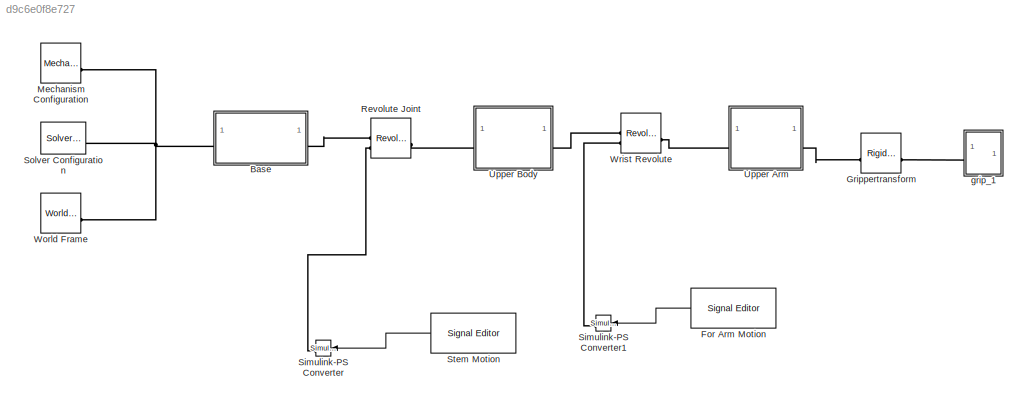
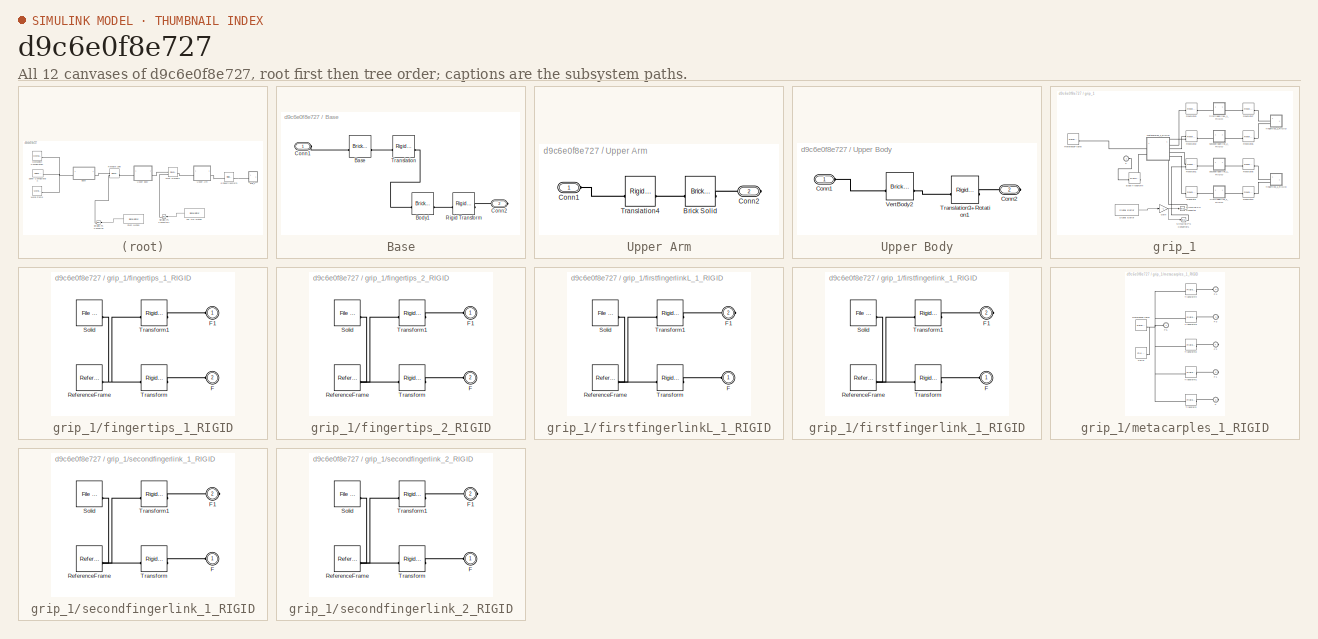
[diagram: thumbnail index - all 12 canvases of the model, root first then tree order]
MODEL slx_d9c6e0f8e727
KIND model
CONFIG AbsTol = auto
CONFIG EnableMultiTasking = off
CONFIG FixedStep = auto
CONFIG MaxStep = auto
CONFIG MinStep = auto
CONFIG RelTol = 1e-3
CONFIG SampleTimeConstraint = Unconstrained
CONFIG SolverName = VariableStepAuto
CONFIG StartTime = 0.0
CONFIG StopTime = 10.0
BLOCK [SubSystem] Base
BLOCK [Reference] Base/Base  REF=sm_lib/Body Elements/Brick Solid
  SourceBlock = sm_lib/Body Elements/Brick Solid
  SourceType = Brick Solid
BLOCK [Reference] Base/Body1  REF=sm_lib/Body Elements/Brick Solid
  SourceBlock = sm_lib/Body Elements/Brick Solid
  SourceType = Brick Solid
BLOCK [PMIOPort] Base/Conn1
  Side = Left
BLOCK [PMIOPort] Base/Conn2
  Port = 2
  Side = Right
BLOCK [Reference] Base/Rigid Transform  REF=sm_lib/Frames and
Transforms/Rigid
Transform
  SourceBlock = sm_lib/Frames and\nTransforms/Rigid\nTransform
  SourceType = Rigid\nTransform
BLOCK [Reference] Base/Translation  REF=sm_lib/Frames and
Transforms/Rigid
Transform
  SourceBlock = sm_lib/Frames and\nTransforms/Rigid\nTransform
  SourceType = Rigid\nTransform
BLOCK [Reference] For Arm Motion  REF=SignalEditorBlockLib/Signal Editor
  LibrarySourceBlock = simulink/Sources/Signal Editor
  SourceBlock = SignalEditorBlockLib/Signal Editor
  SourceType = SignalEditor
  UserDataPersistent = on
BLOCK [Reference] Grippertransform  REF=sm_lib/Frames and
Transforms/Rigid
Transform
  SourceBlock = sm_lib/Frames and\nTransforms/Rigid\nTransform
  SourceType = Rigid\nTransform
BLOCK [Reference] Mechanism Configuration  REF=sm_lib/Utilities/Mechanism
Configuration
  SourceBlock = sm_lib/Utilities/Mechanism\nConfiguration
  SourceType = Mechanism\nConfiguration
BLOCK [Reference] Revolute Joint  REF=sm_lib/Joints/Revolute Joint
  SourceBlock = sm_lib/Joints/Revolute Joint
  SourceType = Revolute Joint
BLOCK [Reference] Simulink-PS Converter  REF=nesl_utility/Simulink-PS
Converter
  SourceBlock = nesl_utility/Simulink-PS\nConverter
  SourceType = Simulink-PS\nConverter
BLOCK [Reference] Simulink-PS Converter1  REF=nesl_utility/Simulink-PS
Converter
  SourceBlock = nesl_utility/Simulink-PS\nConverter
  SourceType = Simulink-PS\nConverter
BLOCK [Reference] Solver Configuration  REF=nesl_utility/Solver
Configuration
  SourceBlock = nesl_utility/Solver\nConfiguration
  SourceType = Solver\nConfiguration
BLOCK [Reference] Stem Motion  REF=SignalEditorBlockLib/Signal Editor
  LibrarySourceBlock = simulink/Sources/Signal Editor
  SourceBlock = SignalEditorBlockLib/Signal Editor
  SourceType = SignalEditor
  UserDataPersistent = on
BLOCK [SubSystem] Upper Arm
BLOCK [Reference] Upper Arm/Brick Solid  REF=sm_lib/Body Elements/Brick Solid
  SourceBlock = sm_lib/Body Elements/Brick Solid
  SourceType = Brick Solid
BLOCK [PMIOPort] Upper Arm/Conn1
  Side = Left
BLOCK [PMIOPort] Upper Arm/Conn2
  Port = 2
  Side = Right
BLOCK [Reference] Upper Arm/Translation4  REF=sm_lib/Frames and
Transforms/Rigid
Transform
  SourceBlock = sm_lib/Frames and\nTransforms/Rigid\nTransform
  SourceType = Rigid\nTransform
BLOCK [SubSystem] Upper Body
BLOCK [PMIOPort] Upper Body/Conn1
  Side = Left
BLOCK [PMIOPort] Upper Body/Conn2
  Port = 2
  Side = Right
BLOCK [Reference] Upper Body/Translation3+Rotation1  REF=sm_lib/Frames and
Transforms/Rigid
Transform
  SourceBlock = sm_lib/Frames and\nTransforms/Rigid\nTransform
  SourceType = Rigid\nTransform
BLOCK [Reference] Upper Body/VertBody2  REF=sm_lib/Body Elements/Brick Solid
  SourceBlock = sm_lib/Body Elements/Brick Solid
  SourceType = Brick Solid
BLOCK [Reference] World Frame  REF=sm_lib/Frames and
Transforms/World Frame
  SourceBlock = sm_lib/Frames and\nTransforms/World Frame
  SourceType = World Frame
BLOCK [Reference] Wrist Revolute  REF=sm_lib/Joints/Revolute Joint
  SourceBlock = sm_lib/Joints/Revolute Joint
  SourceType = Revolute Joint
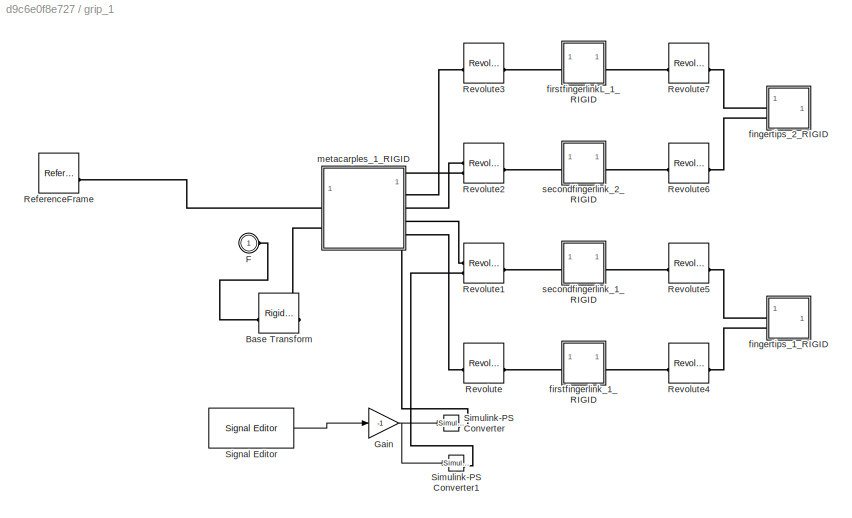
BLOCK [SubSystem] grip_1
BLOCK [Reference] grip_1/Base Transform  REF=sm_lib/Frames and
Transforms/Rigid
Transform
  SourceBlock = sm_lib/Frames and\nTransforms/Rigid\nTransform
  SourceType = Rigid\nTransform
BLOCK [PMIOPort] grip_1/F
  Side = Left
BLOCK [Gain] grip_1/Gain
  Gain = -1
BLOCK [Reference] grip_1/ReferenceFrame  REF=sm_lib/Frames and
Transforms/Reference
Frame
  SourceBlock = sm_lib/Frames and\nTransforms/Reference\nFrame
  SourceType = Reference\nFrame
BLOCK [Reference] grip_1/Revolute  REF=sm_lib/Joints/Revolute Joint
  SourceBlock = sm_lib/Joints/Revolute Joint
  SourceType = Revolute Joint
BLOCK [Reference] grip_1/Revolute1  REF=sm_lib/Joints/Revolute Joint
  SourceBlock = sm_lib/Joints/Revolute Joint
  SourceType = Revolute Joint
BLOCK [Reference] grip_1/Revolute2  REF=sm_lib/Joints/Revolute Joint
  SourceBlock = sm_lib/Joints/Revolute Joint
  SourceType = Revolute Joint
BLOCK [Reference] grip_1/Revolute3  REF=sm_lib/Joints/Revolute Joint
  SourceBlock = sm_lib/Joints/Revolute Joint
  SourceType = Revolute Joint
BLOCK [Reference] grip_1/Revolute4  REF=sm_lib/Joints/Revolute Joint
  SourceBlock = sm_lib/Joints/Revolute Joint
  SourceType = Revolute Joint
BLOCK [Reference] grip_1/Revolute5  REF=sm_lib/Joints/Revolute Joint
  SourceBlock = sm_lib/Joints/Revolute Joint
  SourceType = Revolute Joint
BLOCK [Reference] grip_1/Revolute6  REF=sm_lib/Joints/Revolute Joint
  SourceBlock = sm_lib/Joints/Revolute Joint
  SourceType = Revolute Joint
BLOCK [Reference] grip_1/Revolute7  REF=sm_lib/Joints/Revolute Joint
  SourceBlock = sm_lib/Joints/Revolute Joint
  SourceType = Revolute Joint
BLOCK [Reference] grip_1/Signal Editor  REF=SignalEditorBlockLib/Signal Editor
  LibrarySourceBlock = simulink/Sources/Signal Editor
  SourceBlock = SignalEditorBlockLib/Signal Editor
  SourceType = SignalEditor
  UserDataPersistent = on
BLOCK [Reference] grip_1/Simulink-PS Converter  REF=nesl_utility/Simulink-PS
Converter
  SourceBlock = nesl_utility/Simulink-PS\nConverter
  SourceType = Simulink-PS\nConverter
BLOCK [Reference] grip_1/Simulink-PS Converter1  REF=nesl_utility/Simulink-PS
Converter
  SourceBlock = nesl_utility/Simulink-PS\nConverter
  SourceType = Simulink-PS\nConverter
BLOCK [SubSystem] grip_1/fingertips_1_RIGID
BLOCK [PMIOPort] grip_1/fingertips_1_RIGID/F
  Port = 2
  Side = Left
BLOCK [PMIOPort] grip_1/fingertips_1_RIGID/F1
  Side = Left
BLOCK [Reference] grip_1/fingertips_1_RIGID/ReferenceFrame  REF=sm_lib/Frames and
Transforms/Reference
Frame
  SourceBlock = sm_lib/Frames and\nTransforms/Reference\nFrame
  SourceType = Reference\nFrame
BLOCK [Reference] grip_1/fingertips_1_RIGID/Solid  REF=sm_lib/Body Elements/File Solid
  SourceBlock = sm_lib/Body Elements/File Solid
  SourceType = File Solid
BLOCK [Reference] grip_1/fingertips_1_RIGID/Transform  REF=sm_lib/Frames and
Transforms/Rigid
Transform
  SourceBlock = sm_lib/Frames and\nTransforms/Rigid\nTransform
  SourceType = Rigid\nTransform
BLOCK [Reference] grip_1/fingertips_1_RIGID/Transform1  REF=sm_lib/Frames and
Transforms/Rigid
Transform
  SourceBlock = sm_lib/Frames and\nTransforms/Rigid\nTransform
  SourceType = Rigid\nTransform
BLOCK [SubSystem] grip_1/fingertips_2_RIGID
BLOCK [PMIOPort] grip_1/fingertips_2_RIGID/F
  Port = 2
  Side = Left
BLOCK [PMIOPort] grip_1/fingertips_2_RIGID/F1
  Side = Left
BLOCK [Reference] grip_1/fingertips_2_RIGID/ReferenceFrame  REF=sm_lib/Frames and
Transforms/Reference
Frame
  SourceBlock = sm_lib/Frames and\nTransforms/Reference\nFrame
  SourceType = Reference\nFrame
BLOCK [Reference] grip_1/fingertips_2_RIGID/Solid  REF=sm_lib/Body Elements/File Solid
  SourceBlock = sm_lib/Body Elements/File Solid
  SourceType = File Solid
BLOCK [Reference] grip_1/fingertips_2_RIGID/Transform  REF=sm_lib/Frames and
Transforms/Rigid
Transform
  SourceBlock = sm_lib/Frames and\nTransforms/Rigid\nTransform
  SourceType = Rigid\nTransform
BLOCK [Reference] grip_1/fingertips_2_RIGID/Transform1  REF=sm_lib/Frames and
Transforms/Rigid
Transform
  SourceBlock = sm_lib/Frames and\nTransforms/Rigid\nTransform
  SourceType = Rigid\nTransform
BLOCK [SubSystem] grip_1/firstfingerlinkL_1_RIGID
BLOCK [PMIOPort] grip_1/firstfingerlinkL_1_RIGID/F
  Side = Left
BLOCK [PMIOPort] grip_1/firstfingerlinkL_1_RIGID/F1
  Port = 2
  Side = Right
BLOCK [Reference] grip_1/firstfingerlinkL_1_RIGID/ReferenceFrame  REF=sm_lib/Frames and
Transforms/Reference
Frame
  SourceBlock = sm_lib/Frames and\nTransforms/Reference\nFrame
  SourceType = Reference\nFrame
BLOCK [Reference] grip_1/firstfingerlinkL_1_RIGID/Solid  REF=sm_lib/Body Elements/File Solid
  SourceBlock = sm_lib/Body Elements/File Solid
  SourceType = File Solid
BLOCK [Reference] grip_1/firstfingerlinkL_1_RIGID/Transform  REF=sm_lib/Frames and
Transforms/Rigid
Transform
  SourceBlock = sm_lib/Frames and\nTransforms/Rigid\nTransform
  SourceType = Rigid\nTransform
BLOCK [Reference] grip_1/firstfingerlinkL_1_RIGID/Transform1  REF=sm_lib/Frames and
Transforms/Rigid
Transform
  SourceBlock = sm_lib/Frames and\nTransforms/Rigid\nTransform
  SourceType = Rigid\nTransform
BLOCK [SubSystem] grip_1/firstfingerlink_1_RIGID
BLOCK [PMIOPort] grip_1/firstfingerlink_1_RIGID/F
  Side = Left
BLOCK [PMIOPort] grip_1/firstfingerlink_1_RIGID/F1
  Port = 2
  Side = Right
BLOCK [Reference] grip_1/firstfingerlink_1_RIGID/ReferenceFrame  REF=sm_lib/Frames and
Transforms/Reference
Frame
  SourceBlock = sm_lib/Frames and\nTransforms/Reference\nFrame
  SourceType = Reference\nFrame
BLOCK [Reference] grip_1/firstfingerlink_1_RIGID/Solid  REF=sm_lib/Body Elements/File Solid
  SourceBlock = sm_lib/Body Elements/File Solid
  SourceType = File Solid
BLOCK [Reference] grip_1/firstfingerlink_1_RIGID/Transform  REF=sm_lib/Frames and
Transforms/Rigid
Transform
  SourceBlock = sm_lib/Frames and\nTransforms/Rigid\nTransform
  SourceType = Rigid\nTransform
BLOCK [Reference] grip_1/firstfingerlink_1_RIGID/Transform1  REF=sm_lib/Frames and
Transforms/Rigid
Transform
  SourceBlock = sm_lib/Frames and\nTransforms/Rigid\nTransform
  SourceType = Rigid\nTransform
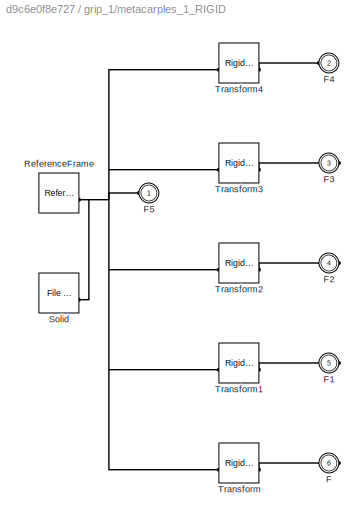
BLOCK [SubSystem] grip_1/metacarples_1_RIGID
BLOCK [PMIOPort] grip_1/metacarples_1_RIGID/F
  Port = 6
  Side = Right
BLOCK [PMIOPort] grip_1/metacarples_1_RIGID/F1
  Port = 5
  Side = Right
BLOCK [PMIOPort] grip_1/metacarples_1_RIGID/F2
  Port = 4
  Side = Right
BLOCK [PMIOPort] grip_1/metacarples_1_RIGID/F3
  Port = 3
  Side = Right
BLOCK [PMIOPort] grip_1/metacarples_1_RIGID/F4
  Port = 2
  Side = Left
BLOCK [PMIOPort] grip_1/metacarples_1_RIGID/F5
  Side = Left
BLOCK [Reference] grip_1/metacarples_1_RIGID/ReferenceFrame  REF=sm_lib/Frames and
Transforms/Reference
Frame
  SourceBlock = sm_lib/Frames and\nTransforms/Reference\nFrame
  SourceType = Reference\nFrame
BLOCK [Reference] grip_1/metacarples_1_RIGID/Solid  REF=sm_lib/Body Elements/File Solid
  SourceBlock = sm_lib/Body Elements/File Solid
  SourceType = File Solid
BLOCK [Reference] grip_1/metacarples_1_RIGID/Transform  REF=sm_lib/Frames and
Transforms/Rigid
Transform
  SourceBlock = sm_lib/Frames and\nTransforms/Rigid\nTransform
  SourceType = Rigid\nTransform
BLOCK [Reference] grip_1/metacarples_1_RIGID/Transform1  REF=sm_lib/Frames and
Transforms/Rigid
Transform
  SourceBlock = sm_lib/Frames and\nTransforms/Rigid\nTransform
  SourceType = Rigid\nTransform
BLOCK [Reference] grip_1/metacarples_1_RIGID/Transform2  REF=sm_lib/Frames and
Transforms/Rigid
Transform
  SourceBlock = sm_lib/Frames and\nTransforms/Rigid\nTransform
  SourceType = Rigid\nTransform
BLOCK [Reference] grip_1/metacarples_1_RIGID/Transform3  REF=sm_lib/Frames and
Transforms/Rigid
Transform
  SourceBlock = sm_lib/Frames and\nTransforms/Rigid\nTransform
  SourceType = Rigid\nTransform
BLOCK [Reference] grip_1/metacarples_1_RIGID/Transform4  REF=sm_lib/Frames and
Transforms/Rigid
Transform
  SourceBlock = sm_lib/Frames and\nTransforms/Rigid\nTransform
  SourceType = Rigid\nTransform
BLOCK [SubSystem] grip_1/secondfingerlink_1_RIGID
BLOCK [PMIOPort] grip_1/secondfingerlink_1_RIGID/F
  Side = Left
BLOCK [PMIOPort] grip_1/secondfingerlink_1_RIGID/F1
  Port = 2
  Side = Right
BLOCK [Reference] grip_1/secondfingerlink_1_RIGID/ReferenceFrame  REF=sm_lib/Frames and
Transforms/Reference
Frame
  SourceBlock = sm_lib/Frames and\nTransforms/Reference\nFrame
  SourceType = Reference\nFrame
BLOCK [Reference] grip_1/secondfingerlink_1_RIGID/Solid  REF=sm_lib/Body Elements/File Solid
  SourceBlock = sm_lib/Body Elements/File Solid
  SourceType = File Solid
BLOCK [Reference] grip_1/secondfingerlink_1_RIGID/Transform  REF=sm_lib/Frames and
Transforms/Rigid
Transform
  SourceBlock = sm_lib/Frames and\nTransforms/Rigid\nTransform
  SourceType = Rigid\nTransform
BLOCK [Reference] grip_1/secondfingerlink_1_RIGID/Transform1  REF=sm_lib/Frames and
Transforms/Rigid
Transform
  SourceBlock = sm_lib/Frames and\nTransforms/Rigid\nTransform
  SourceType = Rigid\nTransform
BLOCK [SubSystem] grip_1/secondfingerlink_2_RIGID
BLOCK [PMIOPort] grip_1/secondfingerlink_2_RIGID/F
  Side = Left
BLOCK [PMIOPort] grip_1/secondfingerlink_2_RIGID/F1
  Port = 2
  Side = Right
BLOCK [Reference] grip_1/secondfingerlink_2_RIGID/ReferenceFrame  REF=sm_lib/Frames and
Transforms/Reference
Frame
  SourceBlock = sm_lib/Frames and\nTransforms/Reference\nFrame
  SourceType = Reference\nFrame
BLOCK [Reference] grip_1/secondfingerlink_2_RIGID/Solid  REF=sm_lib/Body Elements/File Solid
  SourceBlock = sm_lib/Body Elements/File Solid
  SourceType = File Solid
BLOCK [Reference] grip_1/secondfingerlink_2_RIGID/Transform  REF=sm_lib/Frames and
Transforms/Rigid
Transform
  SourceBlock = sm_lib/Frames and\nTransforms/Rigid\nTransform
  SourceType = Rigid\nTransform
BLOCK [Reference] grip_1/secondfingerlink_2_RIGID/Transform1  REF=sm_lib/Frames and
Transforms/Rigid
Transform
  SourceBlock = sm_lib/Frames and\nTransforms/Rigid\nTransform
  SourceType = Rigid\nTransform
LINE For Arm Motion:1 -> Simulink-PS Converter1:1
LINE Stem Motion:1 -> Simulink-PS Converter:1
NET grip_1/Gain:1 -> grip_1/Simulink-PS Converter1:1, grip_1/Simulink-PS Converter:1
LINE grip_1/Signal Editor:1 -> grip_1/Gain:1
PLINE Base/Base:LConn1 -- Base/Conn1:RConn1
PLINE Base/Base:RConn1 -- Base/Translation:LConn1
PLINE Base/Body1:LConn1 -- Base/Translation:RConn1
PLINE Base/Body1:RConn1 -- Base/Rigid Transform:LConn1
PLINE Base/Conn2:RConn1 -- Base/Rigid Transform:RConn1
PNET net1: Base:LConn1 -- Mechanism Configuration:RConn1 -- Solver Configuration:RConn1 -- World Frame:RConn1
PLINE Base:RConn1 -- Revolute Joint:LConn1
PLINE Grippertransform:LConn1 -- Upper Arm:RConn1
PLINE Grippertransform:RConn1 -- grip_1:LConn1
PLINE Revolute Joint:LConn2 -- Simulink-PS Converter:RConn1
PLINE Revolute Joint:RConn1 -- Upper Body:LConn1
PLINE Simulink-PS Converter1:RConn1 -- Wrist Revolute:LConn2
PLINE Upper Arm/Brick Solid:LConn1 -- Upper Arm/Translation4:RConn1
PLINE Upper Arm/Brick Solid:RConn1 -- Upper Arm/Conn2:RConn1
PLINE Upper Arm/Conn1:RConn1 -- Upper Arm/Translation4:LConn1
PLINE Upper Arm:LConn1 -- Wrist Revolute:RConn1
PLINE Upper Body/Conn1:RConn1 -- Upper Body/VertBody2:LConn1
PLINE Upper Body/Conn2:RConn1 -- Upper Body/Translation3+Rotation1:RConn1
PLINE Upper Body/Translation3+Rotation1:LConn1 -- Upper Body/VertBody2:RConn1
PLINE Upper Body:RConn1 -- Wrist Revolute:LConn1
PLINE grip_1/Base Transform:LConn1 -- grip_1/F:RConn1
PLINE grip_1/Base Transform:RConn1 -- grip_1/metacarples_1_RIGID:LConn2
PLINE grip_1/ReferenceFrame:RConn1 -- grip_1/metacarples_1_RIGID:LConn1
PLINE grip_1/Revolute1:LConn1 -- grip_1/metacarples_1_RIGID:RConn3
PLINE grip_1/Revolute1:LConn2 -- grip_1/Simulink-PS Converter1:RConn1
PLINE grip_1/Revolute1:RConn1 -- grip_1/secondfingerlink_1_RIGID:LConn1
PLINE grip_1/Revolute2:LConn1 -- grip_1/metacarples_1_RIGID:RConn2
PLINE grip_1/Revolute2:LConn2 -- grip_1/Simulink-PS Converter:RConn1
PLINE grip_1/Revolute2:RConn1 -- grip_1/secondfingerlink_2_RIGID:LConn1
PLINE grip_1/Revolute3:LConn1 -- grip_1/metacarples_1_RIGID:RConn1
PLINE grip_1/Revolute3:RConn1 -- grip_1/firstfingerlinkL_1_RIGID:LConn1
PLINE grip_1/Revolute4:LConn1 -- grip_1/firstfingerlink_1_RIGID:RConn1
PLINE grip_1/Revolute4:RConn1 -- grip_1/fingertips_1_RIGID:LConn2
PLINE grip_1/Revolute5:LConn1 -- grip_1/secondfingerlink_1_RIGID:RConn1
PLINE grip_1/Revolute5:RConn1 -- grip_1/fingertips_1_RIGID:LConn1
PLINE grip_1/Revolute6:LConn1 -- grip_1/secondfingerlink_2_RIGID:RConn1
PLINE grip_1/Revolute6:RConn1 -- grip_1/fingertips_2_RIGID:LConn2
PLINE grip_1/Revolute7:LConn1 -- grip_1/firstfingerlinkL_1_RIGID:RConn1
PLINE grip_1/Revolute7:RConn1 -- grip_1/fingertips_2_RIGID:LConn1
PLINE grip_1/Revolute:LConn1 -- grip_1/metacarples_1_RIGID:RConn4
PLINE grip_1/Revolute:RConn1 -- grip_1/firstfingerlink_1_RIGID:LConn1
PLINE grip_1/fingertips_1_RIGID/F1:RConn1 -- grip_1/fingertips_1_RIGID/Transform1:RConn1
PLINE grip_1/fingertips_1_RIGID/F:RConn1 -- grip_1/fingertips_1_RIGID/Transform:RConn1
PNET net2: grip_1/fingertips_1_RIGID/ReferenceFrame:RConn1 -- grip_1/fingertips_1_RIGID/Solid:RConn1 -- grip_1/fingertips_1_RIGID/Transform1:LConn1 -- grip_1/fingertips_1_RIGID/Transform:LConn1
PLINE grip_1/fingertips_2_RIGID/F1:RConn1 -- grip_1/fingertips_2_RIGID/Transform1:RConn1
PLINE grip_1/fingertips_2_RIGID/F:RConn1 -- grip_1/fingertips_2_RIGID/Transform:RConn1
PNET net3: grip_1/fingertips_2_RIGID/ReferenceFrame:RConn1 -- grip_1/fingertips_2_RIGID/Solid:RConn1 -- grip_1/fingertips_2_RIGID/Transform1:LConn1 -- grip_1/fingertips_2_RIGID/Transform:LConn1
PLINE grip_1/firstfingerlinkL_1_RIGID/F1:RConn1 -- grip_1/firstfingerlinkL_1_RIGID/Transform1:RConn1
PLINE grip_1/firstfingerlinkL_1_RIGID/F:RConn1 -- grip_1/firstfingerlinkL_1_RIGID/Transform:RConn1
PNET net4: grip_1/firstfingerlinkL_1_RIGID/ReferenceFrame:RConn1 -- grip_1/firstfingerlinkL_1_RIGID/Solid:RConn1 -- grip_1/firstfingerlinkL_1_RIGID/Transform1:LConn1 -- grip_1/firstfingerlinkL_1_RIGID/Transform:LConn1
PLINE grip_1/firstfingerlink_1_RIGID/F1:RConn1 -- grip_1/firstfingerlink_1_RIGID/Transform1:RConn1
PLINE grip_1/firstfingerlink_1_RIGID/F:RConn1 -- grip_1/firstfingerlink_1_RIGID/Transform:RConn1
PNET net5: grip_1/firstfingerlink_1_RIGID/ReferenceFrame:RConn1 -- grip_1/firstfingerlink_1_RIGID/Solid:RConn1 -- grip_1/firstfingerlink_1_RIGID/Transform1:LConn1 -- grip_1/firstfingerlink_1_RIGID/Transform:LConn1
PLINE grip_1/metacarples_1_RIGID/F1:RConn1 -- grip_1/metacarples_1_RIGID/Transform1:RConn1
PLINE grip_1/metacarples_1_RIGID/F2:RConn1 -- grip_1/metacarples_1_RIGID/Transform2:RConn1
PLINE grip_1/metacarples_1_RIGID/F3:RConn1 -- grip_1/metacarples_1_RIGID/Transform3:RConn1
PLINE grip_1/metacarples_1_RIGID/F4:RConn1 -- grip_1/metacarples_1_RIGID/Transform4:RConn1
PNET net6: grip_1/metacarples_1_RIGID/F5:RConn1 -- grip_1/metacarples_1_RIGID/ReferenceFrame:RConn1 -- grip_1/metacarples_1_RIGID/Solid:RConn1 -- grip_1/metacarples_1_RIGID/Transform1:LConn1 -- grip_1/metacarples_1_RIGID/Transform2:LConn1 -- grip_1/metacarples_1_RIGID/Transform3:LConn1 -- grip_1/metacarples_1_RIGID/Transform4:LConn1 -- grip_1/metacarples_1_RIGID/Transform:LConn1
PLINE grip_1/metacarples_1_RIGID/F:RConn1 -- grip_1/metacarples_1_RIGID/Transform:RConn1
PLINE grip_1/secondfingerlink_1_RIGID/F1:RConn1 -- grip_1/secondfingerlink_1_RIGID/Transform1:RConn1
PLINE grip_1/secondfingerlink_1_RIGID/F:RConn1 -- grip_1/secondfingerlink_1_RIGID/Transform:RConn1
PNET net7: grip_1/secondfingerlink_1_RIGID/ReferenceFrame:RConn1 -- grip_1/secondfingerlink_1_RIGID/Solid:RConn1 -- grip_1/secondfingerlink_1_RIGID/Transform1:LConn1 -- grip_1/secondfingerlink_1_RIGID/Transform:LConn1
PLINE grip_1/secondfingerlink_2_RIGID/F1:RConn1 -- grip_1/secondfingerlink_2_RIGID/Transform1:RConn1
PLINE grip_1/secondfingerlink_2_RIGID/F:RConn1 -- grip_1/secondfingerlink_2_RIGID/Transform:RConn1
PNET net8: grip_1/secondfingerlink_2_RIGID/ReferenceFrame:RConn1 -- grip_1/secondfingerlink_2_RIGID/Solid:RConn1 -- grip_1/secondfingerlink_2_RIGID/Transform1:LConn1 -- grip_1/secondfingerlink_2_RIGID/Transform:LConn1
note: NET lines group one-source signal fan-out (src -> all destinations, sorted); 1:1 wires keep LINE; PNET lines group multi-terminal physical nets as a canonical sorted terminal list (undirected conserving connections); 2-terminal nets keep the pairwise PLINE form
